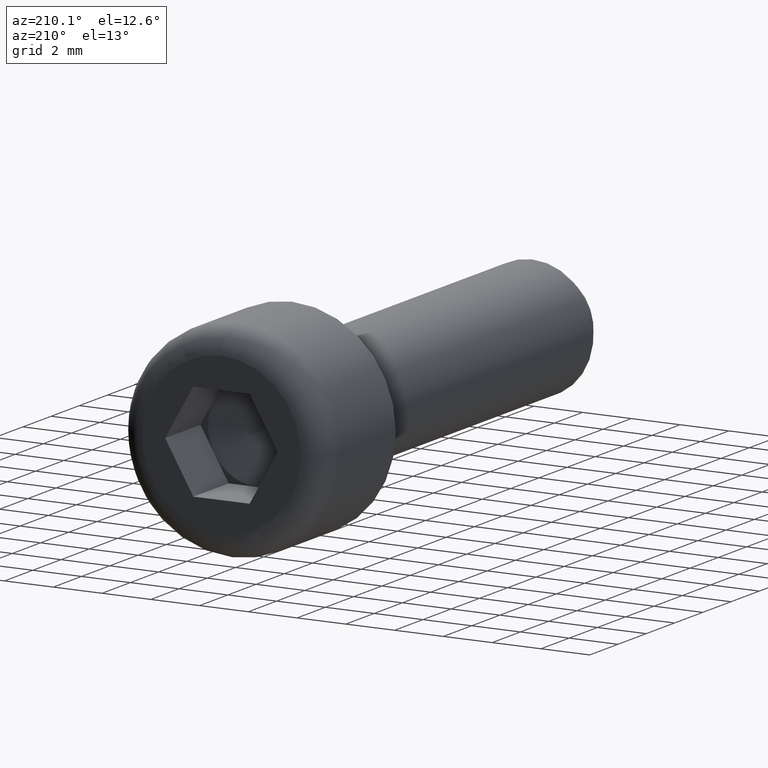
[diagram: clean part render]
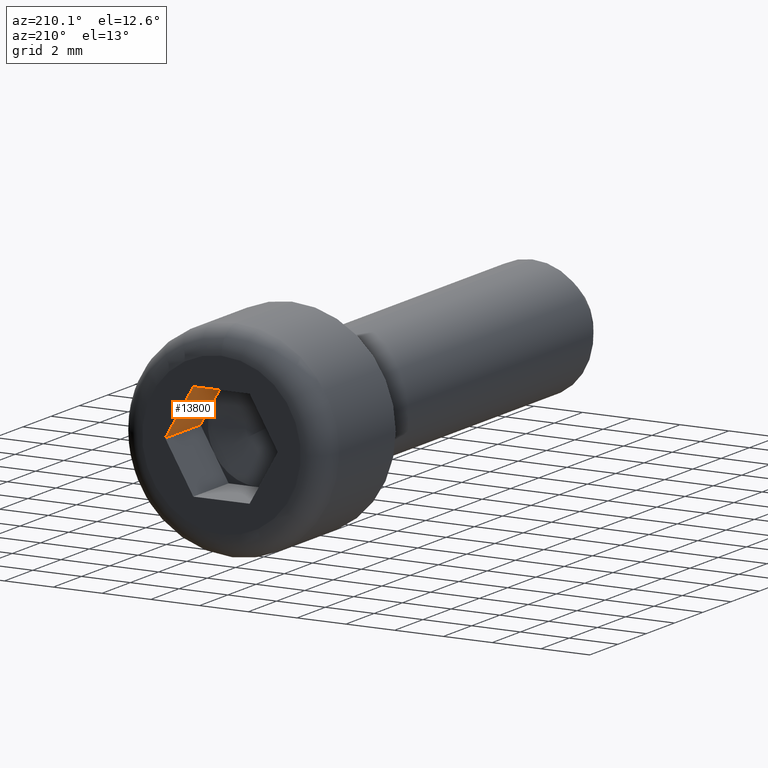
[diagram: same view with one face highlighted and labeled with its STEP entity id]
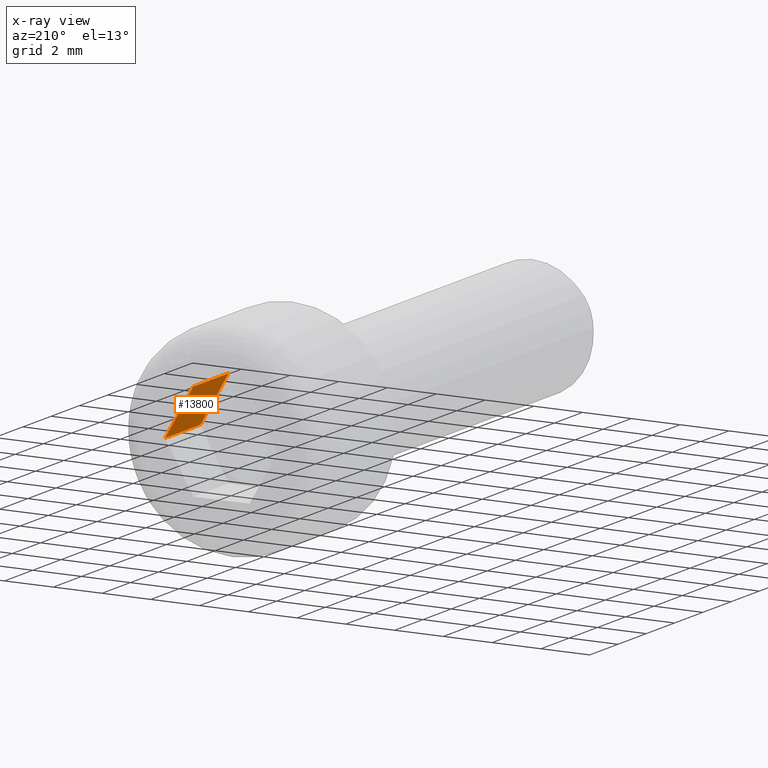
[diagram: x-ray of the same camera — body ghosted, the highlighted face saturated]
A machine part, auxiliary view. The second image highlights one B-rep face of the part: STEP entity #13800.
The next image is the same camera in x-ray: the body ghosted, the highlighted face saturated — about 0% of this face is hidden behind the body in this view.
In plain terms, the highlighted planar face has unit normal (0.866, 0, 0.5).
Its self-contained STEP definition (entity closure, byte-faithful):
#90 = CARTESIAN_POINT ( 'NONE',  ( 1.154700538379251700, 2.500000000000000000, 2.000000000000000000 ) ) ;
#150 = DIRECTION ( 'NONE',  ( 0.5000000000000001100, 0.0000000000000000000, -0.8660254037844384900 ) ) ;
#369 = CARTESIAN_POINT ( 'NONE',  ( 1.154700538379251700, 2.500000000000000000, 2.000000000000000000 ) ) ;
#535 = VECTOR ( 'NONE', #4334, 1000.000000000000000 ) ;
#1516 = ORIENTED_EDGE ( 'NONE', *, *, #7741, .F. ) ;
#2029 = PLANE ( 'NONE',  #11840 ) ;
#2090 = EDGE_CURVE ( 'NONE', #9695, #9819, #5461, .T. ) ;
#2139 = VERTEX_POINT ( 'NONE', #4191 ) ;
#2676 = ORIENTED_EDGE ( 'NONE', *, *, #5018, .F. ) ;
#3113 = CARTESIAN_POINT ( 'NONE',  ( 1.154700538379251700, 2.500000000000000000, 2.000000000000000000 ) ) ;
#3233 = DIRECTION ( 'NONE',  ( 0.5000000000000001100, 0.0000000000000000000, -0.8660254037844384900 ) ) ;
#3691 = CARTESIAN_POINT ( 'NONE',  ( 1.154700538379251700, 2.500000000000000000, 2.000000000000000000 ) ) ;
#3799 = CARTESIAN_POINT ( 'NONE',  ( 2.309401076758503400, 2.500000000000000000, 2.540179005726034300E-016 ) ) ;
#4191 = CARTESIAN_POINT ( 'NONE',  ( 1.732050807568877000, 2.499999999999999600, 1.000000000000000200 ) ) ;
#4334 = DIRECTION ( 'NONE',  ( -0.0000000000000000000, 1.000000000000000000, -0.0000000000000000000 ) ) ;
#4420 = DIRECTION ( 'NONE',  ( 0.5000000000000002200, 0.0000000000000000000, -0.8660254037844384900 ) ) ;
#4617 = EDGE_CURVE ( 'NONE', #15363, #9695, #10895, .T. ) ;
#5018 = EDGE_CURVE ( 'NONE', #15363, #2139, #14169, .T. ) ;
#5124 = DIRECTION ( 'NONE',  ( 0.5000000000000001100, 0.0000000000000000000, -0.8660254037844384900 ) ) ;
#5461 = LINE ( 'NONE', #10082, #10909 ) ;
#5927 = ORIENTED_EDGE ( 'NONE', *, *, #2090, .T. ) ;
#6167 = EDGE_CURVE ( 'NONE', #8144, #9819, #13211, .T. ) ;
#7218 = VECTOR ( 'NONE', #3233, 1000.000000000000200 ) ;
#7741 = EDGE_CURVE ( 'NONE', #2139, #8144, #14399, .T. ) ;
#8144 = VERTEX_POINT ( 'NONE', #3799 ) ;
#8335 = VECTOR ( 'NONE', #150, 1000.000000000000200 ) ;
#8963 = CARTESIAN_POINT ( 'NONE',  ( 2.309401076758503400, 5.000000000000000000, 2.540179005726034300E-016 ) ) ;
#9603 = CARTESIAN_POINT ( 'NONE',  ( 1.154700538379252100, 5.000000000000000000, 2.000000000000000000 ) ) ;
#9695 = VERTEX_POINT ( 'NONE', #9603 ) ;
#9819 = VERTEX_POINT ( 'NONE', #8963 ) ;
#10082 = CARTESIAN_POINT ( 'NONE',  ( 1.154700538379251700, 5.000000000000000000, 2.000000000000000000 ) ) ;
#10449 = FACE_OUTER_BOUND ( 'NONE', #10701, .T. ) ;
#10701 = EDGE_LOOP ( 'NONE', ( #5927, #14698, #1516, #2676, #15990 ) ) ;
#10744 = CARTESIAN_POINT ( 'NONE',  ( 1.154700538379251700, 2.500000000000000000, 2.000000000000000000 ) ) ;
#10895 = LINE ( 'NONE', #3691, #13796 ) ;
#10909 = VECTOR ( 'NONE', #5124, 1000.000000000000200 ) ;
#11840 = AXIS2_PLACEMENT_3D ( 'NONE', #3113, #15686, #4420 ) ;
#13211 = LINE ( 'NONE', #14335, #535 ) ;
#13796 = VECTOR ( 'NONE', #14893, 1000.000000000000000 ) ;
#13800 = ADVANCED_FACE ( 'NONE', ( #10449 ), #2029, .F. ) ;
#14169 = LINE ( 'NONE', #90, #8335 ) ;
#14335 = CARTESIAN_POINT ( 'NONE',  ( 2.309401076758503400, 2.500000000000000000, 2.540179005726034300E-016 ) ) ;
#14399 = LINE ( 'NONE', #369, #7218 ) ;
#14698 = ORIENTED_EDGE ( 'NONE', *, *, #6167, .F. ) ;
#14893 = DIRECTION ( 'NONE',  ( -0.0000000000000000000, 1.000000000000000000, -0.0000000000000000000 ) ) ;
#15363 = VERTEX_POINT ( 'NONE', #10744 ) ;
#15686 = DIRECTION ( 'NONE',  ( 0.8660254037844386000, 0.0000000000000000000, 0.5000000000000003300 ) ) ;
#15990 = ORIENTED_EDGE ( 'NONE', *, *, #4617, .T. ) ;